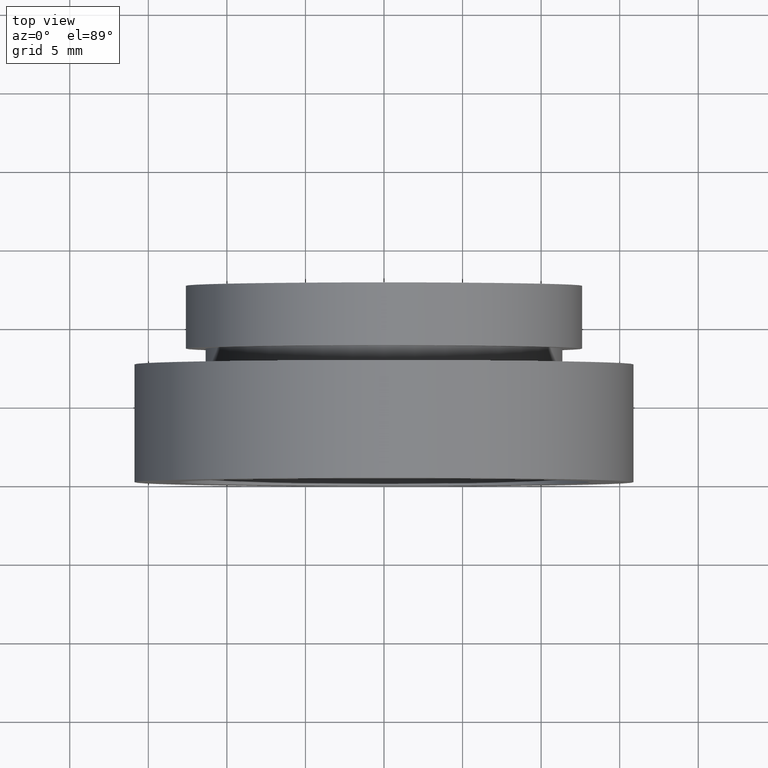
[diagram: clean part render]
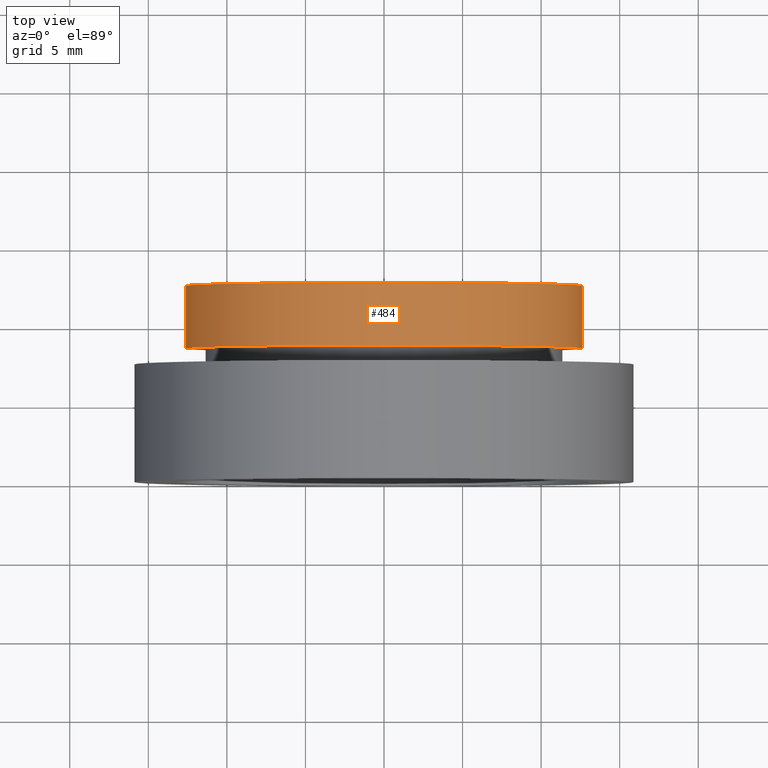
[diagram: same view with one face highlighted and labeled with its STEP entity id]
A machine part, top view. The second image highlights one B-rep face of the part: STEP entity #484.
In plain terms, the highlighted cylindrical surface (partial cylindrical patch) has radius 12.61 mm, axis along (-0, 1, -0).
Its self-contained STEP definition (entity closure, byte-faithful):
#8 = CARTESIAN_POINT ( 'NONE',  ( 5.371323195044474300E-016, 12.49999999999999600, 0.0000000000000000000 ) ) ;
#15 = VERTEX_POINT ( 'NONE', #282 ) ;
#37 = EDGE_CURVE ( 'NONE', #567, #418, #78, .T. ) ;
#41 = DIRECTION ( 'NONE',  ( -1.000000000000000000, -1.375672859616817700E-016, 0.0000000000000000000 ) ) ;
#55 = DIRECTION ( 'NONE',  ( -1.224646799147351000E-016, 1.000000000000000000, -0.0000000000000000000 ) ) ;
#78 = CIRCLE ( 'NONE', #429, 12.60999999999999800 ) ;
#104 = CARTESIAN_POINT ( 'NONE',  ( 12.60999999999999900, 16.88601823708207700, 1.544279613724812300E-015 ) ) ;
#120 = CARTESIAN_POINT ( 'NONE',  ( -12.60999999999999600, 8.499999999999996400, 0.0000000000000000000 ) ) ;
#125 = ORIENTED_EDGE ( 'NONE', *, *, #37, .T. ) ;
#129 = CARTESIAN_POINT ( 'NONE',  ( 1.026991039163387700E-015, 8.499999999999998200, 0.0000000000000000000 ) ) ;
#131 = VECTOR ( 'NONE', #259, 1000.000000000000000 ) ;
#137 = EDGE_CURVE ( 'NONE', #156, #15, #619, .T. ) ;
#156 = VERTEX_POINT ( 'NONE', #291 ) ;
#166 = ORIENTED_EDGE ( 'NONE', *, *, #511, .T. ) ;
#186 = VECTOR ( 'NONE', #55, 1000.000000000000000 ) ;
#192 = DIRECTION ( 'NONE',  ( -1.224646799147351000E-016, 1.000000000000000000, -0.0000000000000000000 ) ) ;
#197 = FACE_OUTER_BOUND ( 'NONE', #234, .T. ) ;
#234 = EDGE_LOOP ( 'NONE', ( #125, #166, #410, #520 ) ) ;
#242 = CYLINDRICAL_SURFACE ( 'NONE', #585, 12.60999999999999900 ) ;
#246 = CARTESIAN_POINT ( 'NONE',  ( 12.60999999999999900, 8.500000000000000000, 1.544279613724812300E-015 ) ) ;
#259 = DIRECTION ( 'NONE',  ( -1.224646799147351000E-016, 1.000000000000000000, -0.0000000000000000000 ) ) ;
#275 = EDGE_CURVE ( 'NONE', #567, #156, #284, .T. ) ;
#282 = CARTESIAN_POINT ( 'NONE',  ( 12.60999999999999900, 12.49999999999999800, 1.544279613724812300E-015 ) ) ;
#284 = LINE ( 'NONE', #544, #131 ) ;
#291 = CARTESIAN_POINT ( 'NONE',  ( -12.60999999999999900, 12.49999999999999500, 0.0000000000000000000 ) ) ;
#301 = CARTESIAN_POINT ( 'NONE',  ( 0.0000000000000000000, 16.88601823708207700, 0.0000000000000000000 ) ) ;
#387 = LINE ( 'NONE', #104, #186 ) ;
#410 = ORIENTED_EDGE ( 'NONE', *, *, #137, .F. ) ;
#412 = DIRECTION ( 'NONE',  ( -1.224646799147351000E-016, 1.000000000000000000, -0.0000000000000000000 ) ) ;
#418 = VERTEX_POINT ( 'NONE', #246 ) ;
#429 = AXIS2_PLACEMENT_3D ( 'NONE', #129, #485, #432 ) ;
#432 = DIRECTION ( 'NONE',  ( -1.000000000000000000, -1.375672859616818000E-016, 0.0000000000000000000 ) ) ;
#456 = DIRECTION ( 'NONE',  ( -1.000000000000000000, 0.0000000000000000000, 0.0000000000000000000 ) ) ;
#465 = AXIS2_PLACEMENT_3D ( 'NONE', #8, #192, #41 ) ;
#484 = ADVANCED_FACE ( 'NONE', ( #197 ), #242, .T. ) ;
#485 = DIRECTION ( 'NONE',  ( -1.224646799147351000E-016, 1.000000000000000000, -0.0000000000000000000 ) ) ;
#511 = EDGE_CURVE ( 'NONE', #418, #15, #387, .T. ) ;
#520 = ORIENTED_EDGE ( 'NONE', *, *, #275, .F. ) ;
#544 = CARTESIAN_POINT ( 'NONE',  ( -12.60999999999999900, 16.88601823708207700, 0.0000000000000000000 ) ) ;
#567 = VERTEX_POINT ( 'NONE', #120 ) ;
#585 = AXIS2_PLACEMENT_3D ( 'NONE', #301, #412, #456 ) ;
#619 = CIRCLE ( 'NONE', #465, 12.60999999999999900 ) ;